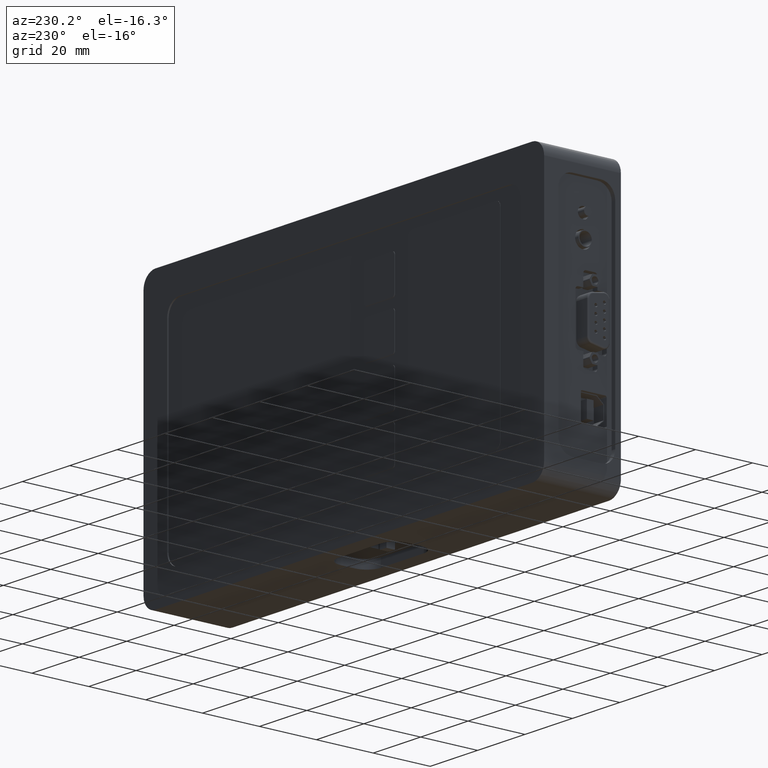
[diagram: clean part render]
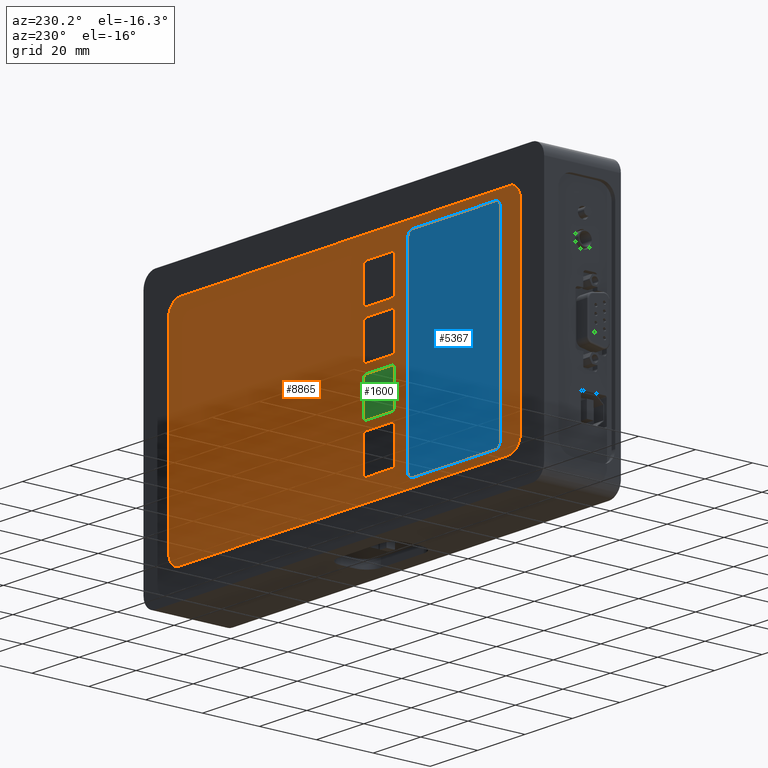
[diagram: same view with three faces highlighted in distinct colors, each labeled with its STEP entity id]
A machine part, auxiliary view with three faces highlighted in distinct colors.
Their STEP definitions:

[orange] entity #8865 — the highlighted planar face has unit normal (0, -1, 0).
#8 = ORIENTED_EDGE ( 'NONE', *, *, #6400, .F. ) ;
#10 = EDGE_CURVE ( 'NONE', #2562, #3944, #6419, .T. ) ;
#46 = ORIENTED_EDGE ( 'NONE', *, *, #5410, .T. ) ;
#71 = VERTEX_POINT ( 'NONE', #2460 ) ;
#102 = ORIENTED_EDGE ( 'NONE', *, *, #9037, .T. ) ;
#126 = CARTESIAN_POINT ( 'NONE',  ( -63.50000000000000000, 26.50000000000000000, -35.00000000000000000 ) ) ;
#148 = VERTEX_POINT ( 'NONE', #4067 ) ;
#183 = DIRECTION ( 'NONE',  ( 0.7071067811865467956, 0.000000000000000000, 0.7071067811865484609 ) ) ;
#194 = DIRECTION ( 'NONE',  ( 0.7071067811865481278, 0.000000000000000000, -0.7071067811865469066 ) ) ;
#208 = CIRCLE ( 'NONE', #785, 5.000000000000001776 ) ;
#210 = DIRECTION ( 'NONE',  ( 0.000000000000000000, 1.000000000000000000, 0.000000000000000000 ) ) ;
#257 = DIRECTION ( 'NONE',  ( -0.7071067811865457964, 0.000000000000000000, 0.7071067811865492381 ) ) ;
#259 = DIRECTION ( 'NONE',  ( 0.000000000000000000, -1.000000000000000000, 0.000000000000000000 ) ) ;
#293 = DIRECTION ( 'NONE',  ( 0.000000000000000000, 1.000000000000000000, 0.000000000000000000 ) ) ;
#294 = CARTESIAN_POINT ( 'NONE',  ( -8.292893218813452094, 26.50000000000000000, 14.20710678118654791 ) ) ;
#308 = DIRECTION ( 'NONE',  ( 0.7071067811865467956, 0.000000000000000000, 0.7071067811865484609 ) ) ;
#314 = CARTESIAN_POINT ( 'NONE',  ( -65.50000000000000000, 26.50000000000000000, -16.50000000000000000 ) ) ;
#352 = DIRECTION ( 'NONE',  ( 0.7071067811865467956, 0.000000000000000000, -0.7071067811865484609 ) ) ;
#362 = AXIS2_PLACEMENT_3D ( 'NONE', #5521, #5656, #6252 ) ;
#388 = DIRECTION ( 'NONE',  ( 0.000000000000000000, -1.000000000000000000, 0.000000000000000000 ) ) ;
#397 = EDGE_CURVE ( 'NONE', #2123, #8497, #7918, .T. ) ;
#405 = ORIENTED_EDGE ( 'NONE', *, *, #3450, .F. ) ;
#417 = DIRECTION ( 'NONE',  ( 0.7071067811865481278, 0.000000000000000000, -0.7071067811865469066 ) ) ;
#426 = ORIENTED_EDGE ( 'NONE', *, *, #1044, .F. ) ;
#434 = EDGE_CURVE ( 'NONE', #1462, #7111, #6729, .T. ) ;
#463 = VERTEX_POINT ( 'NONE', #4046 ) ;
#509 = EDGE_CURVE ( 'NONE', #7726, #2894, #5176, .T. ) ;
#513 = DIRECTION ( 'NONE',  ( 0.000000000000000000, 0.000000000000000000, -1.000000000000000000 ) ) ;
#518 = VECTOR ( 'NONE', #6594, 1000.000000000000000 ) ;
#549 = EDGE_CURVE ( 'NONE', #2016, #2232, #5908, .T. ) ;
#565 = CARTESIAN_POINT ( 'NONE',  ( -73.03553390591824268, 26.50000000000000000, 36.53553390594733941 ) ) ;
#576 = DIRECTION ( 'NONE',  ( 0.000000000000000000, 1.000000000000000000, 0.000000000000000000 ) ) ;
#579 = VERTEX_POINT ( 'NONE', #1513 ) ;
#651 = AXIS2_PLACEMENT_3D ( 'NONE', #2684, #1445, #7076 ) ;
#712 = EDGE_CURVE ( 'NONE', #5114, #1595, #8089, .T. ) ;
#724 = DIRECTION ( 'NONE',  ( 0.7071067811865467956, 0.000000000000000000, 0.7071067811865484609 ) ) ;
#745 = CARTESIAN_POINT ( 'NONE',  ( -69.49999999998550493, 26.50000000000000000, -33.00000000001460165 ) ) ;
#753 = ORIENTED_EDGE ( 'NONE', *, *, #1889, .F. ) ;
#763 = EDGE_CURVE ( 'NONE', #8847, #2029, #2377, .T. ) ;
#772 = CIRCLE ( 'NONE', #4575, 0.9999999999999992228 ) ;
#773 = ORIENTED_EDGE ( 'NONE', *, *, #712, .F. ) ;
#780 = VERTEX_POINT ( 'NONE', #3162 ) ;
#785 = AXIS2_PLACEMENT_3D ( 'NONE', #3248, #8179, #4710 ) ;
#791 = CARTESIAN_POINT ( 'NONE',  ( -1.776356839400250149E-14, 26.50000000000000000, 4.440892098500630106E-15 ) ) ;
#799 = ORIENTED_EDGE ( 'NONE', *, *, #6483, .F. ) ;
#808 = EDGE_LOOP ( 'NONE', ( #2116, #46, #6548, #8250, #2695, #3067, #815, #6992, #5482, #2631, #3370, #4395 ) ) ;
#815 = ORIENTED_EDGE ( 'NONE', *, *, #509, .T. ) ;
#834 = AXIS2_PLACEMENT_3D ( 'NONE', #7449, #2648, #2567 ) ;
#863 = CARTESIAN_POINT ( 'NONE',  ( -20.70710678118654613, 26.50000000000000000, -1.792893218813450540 ) ) ;
#864 = LINE ( 'NONE', #7095, #6732 ) ;
#925 = DIRECTION ( 'NONE',  ( 0.000000000000000000, -1.000000000000000000, 0.000000000000000000 ) ) ;
#981 = AXIS2_PLACEMENT_3D ( 'NONE', #8577, #6396, #257 ) ;
#992 = DIRECTION ( 'NONE',  ( 1.000000000000000000, 0.000000000000000000, -2.537652627714639929E-16 ) ) ;
#1004 = DIRECTION ( 'NONE',  ( 0.000000000000000000, 1.000000000000000000, 0.000000000000000000 ) ) ;
#1009 = CARTESIAN_POINT ( 'NONE',  ( -8.000000000000000000, 26.50000000000000000, -0.7500000000000000000 ) ) ;
#1018 = DIRECTION ( 'NONE',  ( 4.270088556250600220E-16, 0.000000000000000000, 1.000000000000000000 ) ) ;
#1044 = EDGE_CURVE ( 'NONE', #1462, #5114, #8527, .T. ) ;
#1074 = VECTOR ( 'NONE', #1695, 1000.000000000000000 ) ;
#1095 = ORIENTED_EDGE ( 'NONE', *, *, #6778, .F. ) ;
#1099 = CARTESIAN_POINT ( 'NONE',  ( -74.49999999998550493, 26.50000000000000000, 33.00000000001460165 ) ) ;
#1102 = CIRCLE ( 'NONE', #8551, 1.000000000000000000 ) ;
#1127 = CARTESIAN_POINT ( 'NONE',  ( -8.000000000000000000, 26.50000000000000000, 29.50000000000000000 ) ) ;
#1135 = DIRECTION ( 'NONE',  ( 0.000000000000000000, 1.000000000000000000, 0.000000000000000000 ) ) ;
#1139 = ORIENTED_EDGE ( 'NONE', *, *, #3038, .T. ) ;
#1155 = VECTOR ( 'NONE', #8700, 1000.000000000000000 ) ;
#1179 = AXIS2_PLACEMENT_3D ( 'NONE', #5858, #1004, #308 ) ;
#1186 = CIRCLE ( 'NONE', #6310, 2.000000000000001776 ) ;
#1246 = CARTESIAN_POINT ( 'NONE',  ( -9.000000000000000000, 26.50000000000000000, -30.50000000000000000 ) ) ;
#1258 = CARTESIAN_POINT ( 'NONE',  ( -8.000000000000000000, 26.50000000000000000, 2.500000000000000000 ) ) ;
#1260 = EDGE_CURVE ( 'NONE', #1390, #3538, #6790, .T. ) ;
#1305 = LINE ( 'NONE', #3555, #5779 ) ;
#1309 = CARTESIAN_POINT ( 'NONE',  ( -20.00000000000000000, 26.50000000000000000, -2.500000000000000000 ) ) ;
#1325 = CARTESIAN_POINT ( 'NONE',  ( -69.49999999998550493, 26.50000000000000000, 33.00000000001460165 ) ) ;
#1346 = CIRCLE ( 'NONE', #3109, 0.9999999999999997780 ) ;
#1390 = VERTEX_POINT ( 'NONE', #3369 ) ;
#1399 = CIRCLE ( 'NONE', #8831, 1.000000000000001332 ) ;
#1435 = CARTESIAN_POINT ( 'NONE',  ( -20.00000000000000000, 26.50000000000000000, -29.50000000000000000 ) ) ;
#1445 = DIRECTION ( 'NONE',  ( 0.000000000000000000, 1.000000000000000000, 0.000000000000000000 ) ) ;
#1452 = ORIENTED_EDGE ( 'NONE', *, *, #3177, .F. ) ;
#1462 = VERTEX_POINT ( 'NONE', #2819 ) ;
#1481 = VECTOR ( 'NONE', #992, 1000.000000000000000 ) ;
#1483 = EDGE_CURVE ( 'NONE', #8153, #5662, #4462, .T. ) ;
#1498 = EDGE_CURVE ( 'NONE', #6683, #5124, #3472, .T. ) ;
#1507 = CIRCLE ( 'NONE', #8218, 1.000000000000000000 ) ;
#1511 = EDGE_CURVE ( 'NONE', #1390, #1595, #1305, .T. ) ;
#1512 = AXIS2_PLACEMENT_3D ( 'NONE', #4740, #5566, #7705 ) ;
#1513 = CARTESIAN_POINT ( 'NONE',  ( -20.00000000000000000, 26.50000000000000000, -14.50000000000000000 ) ) ;
#1537 = CIRCLE ( 'NONE', #8086, 1.000000000000001332 ) ;
#1539 = CARTESIAN_POINT ( 'NONE',  ( -69.49999999998550493, 26.50000000000000000, 33.00000000001460165 ) ) ;
#1540 = CARTESIAN_POINT ( 'NONE',  ( -8.000000000000000000, 26.50000000000000000, -18.50000000000000000 ) ) ;
#1556 = CARTESIAN_POINT ( 'NONE',  ( -8.000000000000000000, 26.50000000000000000, 7.250000000000000000 ) ) ;
#1571 = FACE_OUTER_BOUND ( 'NONE', #808, .T. ) ;
#1580 = DIRECTION ( 'NONE',  ( 0.000000000000000000, 1.000000000000000000, 0.000000000000000000 ) ) ;
#1595 = VERTEX_POINT ( 'NONE', #1540 ) ;
#1614 = DIRECTION ( 'NONE',  ( 0.000000000000000000, 1.000000000000000000, 0.000000000000000000 ) ) ;
#1629 = VERTEX_POINT ( 'NONE', #7257 ) ;
#1632 = CARTESIAN_POINT ( 'NONE',  ( -9.000000000000000000, 26.50000000000000000, -29.50000000000000000 ) ) ;
#1638 = VERTEX_POINT ( 'NONE', #294 ) ;
#1675 = VECTOR ( 'NONE', #7658, 1000.000000000000000 ) ;
#1695 = DIRECTION ( 'NONE',  ( 4.270088556250600220E-16, 0.000000000000000000, 1.000000000000000000 ) ) ;
#1728 = EDGE_CURVE ( 'NONE', #6810, #1629, #4553, .T. ) ;
#1748 = DIRECTION ( 'NONE',  ( -1.000000000000000000, 0.000000000000000000, 0.000000000000000000 ) ) ;
#1758 = CARTESIAN_POINT ( 'NONE',  ( -20.00000000000000000, 26.50000000000000000, -17.50000000000000000 ) ) ;
#1776 = EDGE_CURVE ( 'NONE', #8847, #8153, #8518, .T. ) ;
#1777 = CARTESIAN_POINT ( 'NONE',  ( -9.000000000000000000, 26.50000000000000000, -18.50000000000000000 ) ) ;
#1806 = CARTESIAN_POINT ( 'NONE',  ( -21.00000000000000000, 26.50000000000000000, -29.50000000000000000 ) ) ;
#1810 = ORIENTED_EDGE ( 'NONE', *, *, #8659, .F. ) ;
#1846 = CIRCLE ( 'NONE', #5508, 1.000000000000000000 ) ;
#1850 = CIRCLE ( 'NONE', #981, 0.9999999999999988898 ) ;
#1871 = DIRECTION ( 'NONE',  ( -1.345724878333519912E-16, 0.000000000000000000, -1.000000000000000000 ) ) ;
#1889 = EDGE_CURVE ( 'NONE', #5731, #2665, #1537, .T. ) ;
#1890 = EDGE_CURVE ( 'NONE', #4795, #6681, #5929, .T. ) ;
#1905 = DIRECTION ( 'NONE',  ( 0.7071067811865475727, 0.000000000000000000, -0.7071067811865475727 ) ) ;
#1949 = DIRECTION ( 'NONE',  ( -0.7071067811865484609, 0.000000000000000000, -0.7071067811865467956 ) ) ;
#1965 = CARTESIAN_POINT ( 'NONE',  ( -8.292893218813452094, 26.50000000000000000, -17.79289321881345032 ) ) ;
#1967 = ORIENTED_EDGE ( 'NONE', *, *, #5843, .T. ) ;
#2004 = CARTESIAN_POINT ( 'NONE',  ( -69.49999999998550493, 26.50000000000000000, -38.00000000001460165 ) ) ;
#2016 = VERTEX_POINT ( 'NONE', #4331 ) ;
#2028 = CARTESIAN_POINT ( 'NONE',  ( -8.000000000000000000, 26.50000000000000000, -13.50000000000000000 ) ) ;
#2029 = VERTEX_POINT ( 'NONE', #3737 ) ;
#2036 = CARTESIAN_POINT ( 'NONE',  ( -20.00000000000000000, 26.50000000000000000, 29.50000000000000000 ) ) ;
#2048 = CARTESIAN_POINT ( 'NONE',  ( -20.00000000000000000, 26.50000000000000000, 29.50000000000000000 ) ) ;
#2088 = AXIS2_PLACEMENT_3D ( 'NONE', #2048, #7717, #6895 ) ;
#2093 = DIRECTION ( 'NONE',  ( 0.000000000000000000, 1.000000000000000000, 0.000000000000000000 ) ) ;
#2098 = AXIS2_PLACEMENT_3D ( 'NONE', #5844, #293, #6476 ) ;
#2113 = EDGE_CURVE ( 'NONE', #2562, #7183, #208, .T. ) ;
#2116 = ORIENTED_EDGE ( 'NONE', *, *, #2113, .T. ) ;
#2119 = VECTOR ( 'NONE', #7616, 1000.000000000000000 ) ;
#2120 = DIRECTION ( 'NONE',  ( 0.000000000000000000, -1.000000000000000000, 0.000000000000000000 ) ) ;
#2123 = VERTEX_POINT ( 'NONE', #3341 ) ;
#2143 = LINE ( 'NONE', #6480, #5078 ) ;
#2164 = VECTOR ( 'NONE', #5412, 1000.000000000000000 ) ;
#2175 = CARTESIAN_POINT ( 'NONE',  ( -28.50000000000000000, 26.50000000000000000, -35.00000000000000000 ) ) ;
#2178 = EDGE_CURVE ( 'NONE', #4431, #4560, #6175, .T. ) ;
#2188 = VERTEX_POINT ( 'NONE', #863 ) ;
#2190 = EDGE_CURVE ( 'NONE', #3443, #6810, #5912, .T. ) ;
#2232 = VERTEX_POINT ( 'NONE', #6957 ) ;
#2245 = CIRCLE ( 'NONE', #2975, 1.000000000000000444 ) ;
#2246 = CIRCLE ( 'NONE', #7065, 1.000000000000001332 ) ;
#2296 = VECTOR ( 'NONE', #7848, 1000.000000000000000 ) ;
#2301 = CARTESIAN_POINT ( 'NONE',  ( -9.000000000000000000, 26.50000000000000000, -2.500000000000000000 ) ) ;
#2327 = DIRECTION ( 'NONE',  ( 1.000000000000000000, 0.000000000000000000, -3.416070845000479880E-16 ) ) ;
#2348 = EDGE_CURVE ( 'NONE', #6983, #7862, #8536, .T. ) ;
#2377 = LINE ( 'NONE', #1009, #1074 ) ;
#2403 = EDGE_CURVE ( 'NONE', #7014, #2918, #8963, .T. ) ;
#2406 = CARTESIAN_POINT ( 'NONE',  ( -9.000000000000000000, 26.50000000000000000, 18.50000000000000000 ) ) ;
#2416 = ORIENTED_EDGE ( 'NONE', *, *, #3155, .F. ) ;
#2430 = AXIS2_PLACEMENT_3D ( 'NONE', #6956, #2747, #7723 ) ;
#2460 = CARTESIAN_POINT ( 'NONE',  ( -21.00000000000000000, 26.50000000000000000, 2.500000000000000000 ) ) ;
#2487 = DIRECTION ( 'NONE',  ( 0.7071067811865469066, 0.000000000000000000, 0.7071067811865481278 ) ) ;
#2502 = DIRECTION ( 'NONE',  ( 0.7071067811865467956, 0.000000000000000000, -0.7071067811865484609 ) ) ;
#2517 = AXIS2_PLACEMENT_3D ( 'NONE', #8150, #3451, #4189 ) ;
#2527 = CIRCLE ( 'NONE', #6181, 1.000000000000001332 ) ;
#2533 = AXIS2_PLACEMENT_3D ( 'NONE', #791, #925, #8565 ) ;
#2554 = AXIS2_PLACEMENT_3D ( 'NONE', #6628, #8627, #4528 ) ;
#2558 = EDGE_CURVE ( 'NONE', #579, #6653, #5778, .T. ) ;
#2562 = VERTEX_POINT ( 'NONE', #3979 ) ;
#2567 = DIRECTION ( 'NONE',  ( -0.7071067811865457964, 0.000000000000000000, 0.7071067811865492381 ) ) ;
#2580 = CIRCLE ( 'NONE', #2430, 0.9999999999999988898 ) ;
#2615 = ORIENTED_EDGE ( 'NONE', *, *, #4476, .T. ) ;
#2631 = ORIENTED_EDGE ( 'NONE', *, *, #2348, .T. ) ;
#2641 = AXIS2_PLACEMENT_3D ( 'NONE', #6629, #7354, #1905 ) ;
#2648 = DIRECTION ( 'NONE',  ( 0.000000000000000000, 1.000000000000000000, 0.000000000000000000 ) ) ;
#2660 = EDGE_CURVE ( 'NONE', #7966, #2864, #8987, .T. ) ;
#2665 = VERTEX_POINT ( 'NONE', #7801 ) ;
#2670 = CARTESIAN_POINT ( 'NONE',  ( -20.00000000000000000, 26.50000000000000000, -29.50000000000000000 ) ) ;
#2669 = CIRCLE ( 'NONE', #2098, 5.000000000000001776 ) ;
#2684 = CARTESIAN_POINT ( 'NONE',  ( -9.000000000000000000, 26.50000000000000000, -13.50000000000000000 ) ) ;
#2695 = ORIENTED_EDGE ( 'NONE', *, *, #3859, .T. ) ;
#2700 = CARTESIAN_POINT ( 'NONE',  ( -10.50000000000000000, 26.50000000000000000, -1.500000000000000000 ) ) ;
#2714 = CARTESIAN_POINT ( 'NONE',  ( -20.00000000000000000, 26.50000000000000000, 2.500000000000000000 ) ) ;
#2747 = DIRECTION ( 'NONE',  ( 0.000000000000000000, 1.000000000000000000, 0.000000000000000000 ) ) ;
#2789 = CARTESIAN_POINT ( 'NONE',  ( -21.00000000000000000, 26.50000000000000000, 18.50000000000000000 ) ) ;
#2813 = DIRECTION ( 'NONE',  ( 0.000000000000000000, 1.000000000000000000, 0.000000000000000000 ) ) ;
#2819 = CARTESIAN_POINT ( 'NONE',  ( -9.000000000000000000, 26.50000000000000000, -17.50000000000000000 ) ) ;
#2848 = DIRECTION ( 'NONE',  ( 0.7071067811865475727, 0.000000000000000000, 0.7071067811865475727 ) ) ;
#2864 = VERTEX_POINT ( 'NONE', #1806 ) ;
#2875 = DIRECTION ( 'NONE',  ( 0.000000000000000000, 1.000000000000000000, 0.000000000000000000 ) ) ;
#2878 = VERTEX_POINT ( 'NONE', #3323 ) ;
#2894 = VERTEX_POINT ( 'NONE', #565 ) ;
#2918 = VERTEX_POINT ( 'NONE', #3931 ) ;
#2939 = CARTESIAN_POINT ( 'NONE',  ( -9.000000000000000000, 26.50000000000000000, 13.50000000000000000 ) ) ;
#2975 = AXIS2_PLACEMENT_3D ( 'NONE', #8649, #6463, #194 ) ;
#2983 = DIRECTION ( 'NONE',  ( 1.000000000000000000, 0.000000000000000000, 3.469446951953617344E-15 ) ) ;
#3005 = VECTOR ( 'NONE', #1748, 1000.000000000000000 ) ;
#3007 = LINE ( 'NONE', #7210, #2296 ) ;
#3010 = ORIENTED_EDGE ( 'NONE', *, *, #2403, .F. ) ;
#3013 = VERTEX_POINT ( 'NONE', #8974 ) ;
#3014 = CIRCLE ( 'NONE', #3302, 5.000000000000001776 ) ;
#3024 = EDGE_LOOP ( 'NONE', ( #4400, #4788, #6722, #5000, #5402, #1967, #8457, #7818 ) ) ;
#3038 = EDGE_CURVE ( 'NONE', #2016, #3715, #7017, .T. ) ;
#3052 = ORIENTED_EDGE ( 'NONE', *, *, #1483, .F. ) ;
#3067 = ORIENTED_EDGE ( 'NONE', *, *, #3278, .F. ) ;
#3093 = ORIENTED_EDGE ( 'NONE', *, *, #397, .T. ) ;
#3109 = AXIS2_PLACEMENT_3D ( 'NONE', #2301, #7106, #6377 ) ;
#3113 = AXIS2_PLACEMENT_3D ( 'NONE', #1539, #1580, #8661 ) ;
#3121 = VECTOR ( 'NONE', #1018, 1000.000000000000000 ) ;
#3150 = ORIENTED_EDGE ( 'NONE', *, *, #3981, .F. ) ;
#3155 = EDGE_CURVE ( 'NONE', #3169, #3432, #6358, .T. ) ;
#3162 = CARTESIAN_POINT ( 'NONE',  ( -9.000000000000000000, 26.50000000000000000, 1.500000000000000000 ) ) ;
#3169 = VERTEX_POINT ( 'NONE', #4463 ) ;
#3177 = EDGE_CURVE ( 'NONE', #2878, #1638, #1102, .T. ) ;
#3248 = CARTESIAN_POINT ( 'NONE',  ( 69.49999999998539124, 26.50000000000000000, -33.00000000001450218 ) ) ;
#3250 = CIRCLE ( 'NONE', #6898, 0.9999999999999995559 ) ;
#3269 = CIRCLE ( 'NONE', #4446, 0.9999999999999997780 ) ;
#3278 = EDGE_CURVE ( 'NONE', #7726, #7884, #6826, .T. ) ;
#3284 = EDGE_CURVE ( 'NONE', #6983, #463, #8874, .T. ) ;
#3302 = AXIS2_PLACEMENT_3D ( 'NONE', #6178, #5451, #8227 ) ;
#3307 = DIRECTION ( 'NONE',  ( 0.000000000000000000, 1.000000000000000000, 0.000000000000000000 ) ) ;
#3320 = DIRECTION ( 'NONE',  ( -0.7071067811865484609, 0.000000000000000000, -0.7071067811865467956 ) ) ;
#3322 = CARTESIAN_POINT ( 'NONE',  ( -26.50000000000000000, 26.50000000000000000, -33.00000000000000000 ) ) ;
#3323 = CARTESIAN_POINT ( 'NONE',  ( -9.000000000000000000, 26.50000000000000000, 14.50000000000000000 ) ) ;
#3341 = CARTESIAN_POINT ( 'NONE',  ( -21.00000000000000000, 26.50000000000000000, -2.500000000000000000 ) ) ;
#3364 = CARTESIAN_POINT ( 'NONE',  ( 73.03553390591812899, 26.50000000000000000, -36.53553390594723993 ) ) ;
#3369 = CARTESIAN_POINT ( 'NONE',  ( -8.000000000000000000, 26.50000000000000000, -29.50000000000000000 ) ) ;
#3370 = ORIENTED_EDGE ( 'NONE', *, *, #8427, .T. ) ;
#3377 = VERTEX_POINT ( 'NONE', #1246 ) ;
#3394 = CARTESIAN_POINT ( 'NONE',  ( -28.50000000000000000, 26.50000000000000000, -33.00000000000000000 ) ) ;
#3395 = ORIENTED_EDGE ( 'NONE', *, *, #5227, .T. ) ;
#3415 = CIRCLE ( 'NONE', #8515, 1.000000000000000444 ) ;
#3430 = ORIENTED_EDGE ( 'NONE', *, *, #549, .F. ) ;
#3432 = VERTEX_POINT ( 'NONE', #4864 ) ;
#3443 = VERTEX_POINT ( 'NONE', #4773 ) ;
#3450 = EDGE_CURVE ( 'NONE', #2232, #7053, #1399, .T. ) ;
#3451 = DIRECTION ( 'NONE',  ( 0.000000000000000000, 1.000000000000000000, 0.000000000000000000 ) ) ;
#3462 = CARTESIAN_POINT ( 'NONE',  ( -20.00000000000000000, 26.50000000000000000, 17.50000000000000000 ) ) ;
#3472 = LINE ( 'NONE', #8984, #6215 ) ;
#3500 = CARTESIAN_POINT ( 'NONE',  ( -8.292893218813452094, 26.50000000000000000, -1.792893218813452094 ) ) ;
#3538 = VERTEX_POINT ( 'NONE', #7104 ) ;
#3546 = DIRECTION ( 'NONE',  ( 0.000000000000000000, 1.000000000000000000, 0.000000000000000000 ) ) ;
#3547 = VECTOR ( 'NONE', #1871, 1000.000000000000000 ) ;
#3555 = CARTESIAN_POINT ( 'NONE',  ( -8.000000000000000000, 26.50000000000000000, -8.750000000000000000 ) ) ;
#3557 = CARTESIAN_POINT ( 'NONE',  ( -9.000000000000000000, 26.50000000000000000, -1.500000000000000000 ) ) ;
#3570 = CARTESIAN_POINT ( 'NONE',  ( -9.000000000000000000, 26.50000000000000000, -18.50000000000000000 ) ) ;
#3610 = DIRECTION ( 'NONE',  ( -1.000000000000000000, 0.000000000000000000, 3.416070845000479880E-16 ) ) ;
#3621 = CIRCLE ( 'NONE', #834, 0.9999999999999988898 ) ;
#3657 = ORIENTED_EDGE ( 'NONE', *, *, #434, .T. ) ;
#3709 = DIRECTION ( 'NONE',  ( 0.000000000000000000, 1.000000000000000000, 0.000000000000000000 ) ) ;
#3715 = VERTEX_POINT ( 'NONE', #5408 ) ;
#3718 = AXIS2_PLACEMENT_3D ( 'NONE', #4010, #388, #5975 ) ;
#3726 = LINE ( 'NONE', #6002, #7478 ) ;
#3734 = PLANE ( 'NONE',  #2533 ) ;
#3737 = CARTESIAN_POINT ( 'NONE',  ( -8.000000000000000000, 26.50000000000000000, -2.500000000000000000 ) ) ;
#3749 = EDGE_CURVE ( 'NONE', #6883, #71, #6644, .T. ) ;
#3750 = VECTOR ( 'NONE', #4853, 1000.000000000000000 ) ;
#3762 = LINE ( 'NONE', #4987, #5364 ) ;
#3776 = DIRECTION ( 'NONE',  ( 1.000000000000000000, 0.000000000000000000, -3.416070845000479880E-16 ) ) ;
#3811 = EDGE_CURVE ( 'NONE', #5731, #3377, #5547, .T. ) ;
#3814 = ORIENTED_EDGE ( 'NONE', *, *, #2178, .T. ) ;
#3829 = ORIENTED_EDGE ( 'NONE', *, *, #9041, .F. ) ;
#3843 = CARTESIAN_POINT ( 'NONE',  ( -21.00000000000000000, 26.50000000000000000, -18.50000000000000000 ) ) ;
#3859 = EDGE_CURVE ( 'NONE', #4976, #7884, #3014, .T. ) ;
#3931 = CARTESIAN_POINT ( 'NONE',  ( -20.70710678118654968, 26.50000000000000000, 1.792893218813453649 ) ) ;
#3944 = VERTEX_POINT ( 'NONE', #8359 ) ;
#3954 = LINE ( 'NONE', #8701, #3121 ) ;
#3974 = ORIENTED_EDGE ( 'NONE', *, *, #2660, .T. ) ;
#3979 = CARTESIAN_POINT ( 'NONE',  ( 74.49999999998539124, 26.50000000000000000, -33.00000000001450218 ) ) ;
#3981 = EDGE_CURVE ( 'NONE', #6681, #5124, #2580, .T. ) ;
#4004 = CIRCLE ( 'NONE', #1512, 0.9999999999999988898 ) ;
#4010 = CARTESIAN_POINT ( 'NONE',  ( -63.50000000000000000, 26.50000000000000000, -33.00000000000000000 ) ) ;
#4023 = EDGE_CURVE ( 'NONE', #579, #5662, #3762, .T. ) ;
#4046 = CARTESIAN_POINT ( 'NONE',  ( -69.49999999998550493, 26.50000000000000000, 38.00000000001460165 ) ) ;
#4067 = CARTESIAN_POINT ( 'NONE',  ( -65.50000000000000000, 26.50000000000000000, -33.00000000000000000 ) ) ;
#4115 = CIRCLE ( 'NONE', #7457, 0.9999999999999992228 ) ;
#4129 = CIRCLE ( 'NONE', #5444, 5.000000000000001776 ) ;
#4138 = CARTESIAN_POINT ( 'NONE',  ( -20.70710678118654613, 26.50000000000000000, 14.20710678118654791 ) ) ;
#4143 = CIRCLE ( 'NONE', #2088, 1.000000000000001332 ) ;
#4165 = CARTESIAN_POINT ( 'NONE',  ( -21.00000000000000000, 26.50000000000000000, -15.25000000000000000 ) ) ;
#4189 = DIRECTION ( 'NONE',  ( -0.7071067811865457964, 0.000000000000000000, 0.7071067811865492381 ) ) ;
#4210 = DIRECTION ( 'NONE',  ( 0.000000000000000000, 0.000000000000000000, -1.000000000000000000 ) ) ;
#4215 = CIRCLE ( 'NONE', #4352, 1.000000000000001332 ) ;
#4218 = EDGE_CURVE ( 'NONE', #3538, #3377, #1846, .T. ) ;
#4226 = ORIENTED_EDGE ( 'NONE', *, *, #4488, .F. ) ;
#4260 = CARTESIAN_POINT ( 'NONE',  ( 73.03553390591812899, 26.50000000000000000, 36.53553390594733941 ) ) ;
#4264 = CARTESIAN_POINT ( 'NONE',  ( -28.50000000000000000, 26.50000000000000000, 33.00000000000000000 ) ) ;
#4274 = VECTOR ( 'NONE', #7080, 1000.000000000000000 ) ;
#4298 = ORIENTED_EDGE ( 'NONE', *, *, #7580, .F. ) ;
#4331 = CARTESIAN_POINT ( 'NONE',  ( -9.000000000000000000, 26.50000000000000000, 30.50000000000000000 ) ) ;
#4333 = DIRECTION ( 'NONE',  ( -0.7071067811865475727, 0.000000000000000000, -0.7071067811865475727 ) ) ;
#4344 = CARTESIAN_POINT ( 'NONE',  ( -4.000000000000000000, 26.50000000000000000, 17.50000000000000000 ) ) ;
#4352 = AXIS2_PLACEMENT_3D ( 'NONE', #2670, #5475, #8254 ) ;
#4366 = ORIENTED_EDGE ( 'NONE', *, *, #1776, .F. ) ;
#4367 = ORIENTED_EDGE ( 'NONE', *, *, #6661, .T. ) ;
#4383 = CARTESIAN_POINT ( 'NONE',  ( -20.00000000000000000, 26.50000000000000000, -30.50000000000000000 ) ) ;
#4395 = ORIENTED_EDGE ( 'NONE', *, *, #10, .F. ) ;
#4400 = ORIENTED_EDGE ( 'NONE', *, *, #2190, .T. ) ;
#4431 = VERTEX_POINT ( 'NONE', #3557 ) ;
#4446 = AXIS2_PLACEMENT_3D ( 'NONE', #6791, #8748, #2487 ) ;
#4449 = AXIS2_PLACEMENT_3D ( 'NONE', #5456, #3307, #8233 ) ;
#4457 = CARTESIAN_POINT ( 'NONE',  ( -21.00000000000000000, 26.50000000000000000, -7.250000000000000000 ) ) ;
#4462 = CIRCLE ( 'NONE', #651, 1.000000000000001332 ) ;
#4463 = CARTESIAN_POINT ( 'NONE',  ( -8.292893218813452094, 26.50000000000000000, 17.79289321881345032 ) ) ;
#4476 = EDGE_CURVE ( 'NONE', #2878, #5371, #2143, .T. ) ;
#4481 = EDGE_CURVE ( 'NONE', #4730, #3443, #3007, .T. ) ;
#4488 = EDGE_CURVE ( 'NONE', #6341, #5371, #1850, .T. ) ;
#4496 = DIRECTION ( 'NONE',  ( 0.000000000000000000, 1.000000000000000000, 0.000000000000000000 ) ) ;
#4528 = DIRECTION ( 'NONE',  ( -0.7071067811865487940, 0.000000000000000000, -0.7071067811865462405 ) ) ;
#4530 = ORIENTED_EDGE ( 'NONE', *, *, #5528, .F. ) ;
#4548 = ORIENTED_EDGE ( 'NONE', *, *, #8449, .F. ) ;
#4553 = LINE ( 'NONE', #5344, #7358 ) ;
#4560 = VERTEX_POINT ( 'NONE', #5345 ) ;
#4575 = AXIS2_PLACEMENT_3D ( 'NONE', #5537, #2875, #8352 ) ;
#4684 = ORIENTED_EDGE ( 'NONE', *, *, #3749, .T. ) ;
#4705 = ORIENTED_EDGE ( 'NONE', *, *, #5678, .T. ) ;
#4710 = DIRECTION ( 'NONE',  ( 0.7071067811865475727, 0.000000000000000000, -0.7071067811865475727 ) ) ;
#4730 = VERTEX_POINT ( 'NONE', #3322 ) ;
#4740 = CARTESIAN_POINT ( 'NONE',  ( -20.00000000000000000, 26.50000000000000000, -18.50000000000000000 ) ) ;
#4756 = AXIS2_PLACEMENT_3D ( 'NONE', #8750, #7465, #6792 ) ;
#4771 = EDGE_LOOP ( 'NONE', ( #5710, #3052, #4366, #5526, #1810, #799, #3814, #4530, #7474, #3093, #8789, #7806 ) ) ;
#4773 = CARTESIAN_POINT ( 'NONE',  ( -26.50000000000000000, 26.50000000000000000, 33.00000000000000000 ) ) ;
#4788 = ORIENTED_EDGE ( 'NONE', *, *, #1728, .T. ) ;
#4795 = VERTEX_POINT ( 'NONE', #3462 ) ;
#4812 = EDGE_CURVE ( 'NONE', #2665, #2864, #4215, .T. ) ;
#4813 = DIRECTION ( 'NONE',  ( 0.000000000000000000, 1.000000000000000000, 0.000000000000000000 ) ) ;
#4816 = DIRECTION ( 'NONE',  ( 0.000000000000000000, 1.000000000000000000, 0.000000000000000000 ) ) ;
#4827 = DIRECTION ( 'NONE',  ( -0.7071067811865510144, 0.000000000000000000, -0.7071067811865441310 ) ) ;
#4853 = DIRECTION ( 'NONE',  ( 1.000000000000000000, 0.000000000000000000, -3.416070845000479880E-16 ) ) ;
#4864 = CARTESIAN_POINT ( 'NONE',  ( -9.000000000000000000, 26.50000000000000000, 17.50000000000000000 ) ) ;
#4972 = EDGE_LOOP ( 'NONE', ( #4367, #3829, #5050, #3395, #7914, #1452, #2615, #4226, #8757, #4684, #4298, #3010 ) ) ;
#4976 = VERTEX_POINT ( 'NONE', #8180 ) ;
#4980 = CARTESIAN_POINT ( 'NONE',  ( -63.50000000000000000, 26.50000000000000000, 33.00000000000000000 ) ) ;
#4987 = CARTESIAN_POINT ( 'NONE',  ( -4.000000000000000000, 26.50000000000000000, -14.50000000000000000 ) ) ;
#4999 = CARTESIAN_POINT ( 'NONE',  ( -65.50000000000000000, 26.50000000000000000, 33.00000000000000000 ) ) ;
#5000 = ORIENTED_EDGE ( 'NONE', *, *, #7771, .T. ) ;
#5007 = DIRECTION ( 'NONE',  ( 0.000000000000000000, 1.000000000000000000, 0.000000000000000000 ) ) ;
#5024 = VERTEX_POINT ( 'NONE', #8822 ) ;
#5032 = EDGE_CURVE ( 'NONE', #6883, #6341, #3621, .T. ) ;
#5050 = ORIENTED_EDGE ( 'NONE', *, *, #8976, .F. ) ;
#5078 = VECTOR ( 'NONE', #3610, 1000.000000000000000 ) ;
#5100 = FACE_BOUND ( 'NONE', #8331, .T. ) ;
#5114 = VERTEX_POINT ( 'NONE', #1965 ) ;
#5124 = VERTEX_POINT ( 'NONE', #2789 ) ;
#5165 = DIRECTION ( 'NONE',  ( 0.000000000000000000, 1.000000000000000000, 0.000000000000000000 ) ) ;
#5176 = CIRCLE ( 'NONE', #8665, 5.000000000000001776 ) ;
#5227 = EDGE_CURVE ( 'NONE', #7253, #7264, #8629, .T. ) ;
#5248 = DIRECTION ( 'NONE',  ( 0.000000000000000000, 1.000000000000000000, 0.000000000000000000 ) ) ;
#5263 = EDGE_CURVE ( 'NONE', #6852, #5024, #864, .T. ) ;
#5312 = EDGE_CURVE ( 'NONE', #1638, #7264, #8769, .T. ) ;
#5326 = AXIS2_PLACEMENT_3D ( 'NONE', #1777, #4496, #183 ) ;
#5344 = CARTESIAN_POINT ( 'NONE',  ( -31.75000000000000000, 26.50000000000000000, 35.00000000000000000 ) ) ;
#5345 = CARTESIAN_POINT ( 'NONE',  ( -20.00000000000000000, 26.50000000000000000, -1.500000000000000000 ) ) ;
#5364 = VECTOR ( 'NONE', #2327, 1000.000000000000000 ) ;
#5371 = VERTEX_POINT ( 'NONE', #5953 ) ;
#5402 = ORIENTED_EDGE ( 'NONE', *, *, #8652, .T. ) ;
#5408 = CARTESIAN_POINT ( 'NONE',  ( -20.00000000000000000, 26.50000000000000000, 30.50000000000000000 ) ) ;
#5410 = EDGE_CURVE ( 'NONE', #7183, #5024, #7601, .T. ) ;
#5412 = DIRECTION ( 'NONE',  ( -1.000000000000000000, 0.000000000000000000, 3.416070845000479880E-16 ) ) ;
#5444 = AXIS2_PLACEMENT_3D ( 'NONE', #745, #3546, #4333 ) ;
#5451 = DIRECTION ( 'NONE',  ( 0.000000000000000000, 1.000000000000000000, 0.000000000000000000 ) ) ;
#5456 = CARTESIAN_POINT ( 'NONE',  ( -9.000000000000000000, 26.50000000000000000, 29.50000000000000000 ) ) ;
#5475 = DIRECTION ( 'NONE',  ( 0.000000000000000000, 1.000000000000000000, 0.000000000000000000 ) ) ;
#5482 = ORIENTED_EDGE ( 'NONE', *, *, #3284, .F. ) ;
#5508 = AXIS2_PLACEMENT_3D ( 'NONE', #8680, #1135, #2502 ) ;
#5521 = CARTESIAN_POINT ( 'NONE',  ( -20.00000000000000000, 26.50000000000000000, 18.50000000000000000 ) ) ;
#5526 = ORIENTED_EDGE ( 'NONE', *, *, #763, .T. ) ;
#5528 = EDGE_CURVE ( 'NONE', #2188, #4560, #4115, .T. ) ;
#5537 = CARTESIAN_POINT ( 'NONE',  ( -20.00000000000000000, 26.50000000000000000, -2.500000000000000000 ) ) ;
#5547 = LINE ( 'NONE', #8281, #3750 ) ;
#5566 = DIRECTION ( 'NONE',  ( 0.000000000000000000, 1.000000000000000000, 0.000000000000000000 ) ) ;
#5580 = CARTESIAN_POINT ( 'NONE',  ( -74.49999999998550493, 26.50000000000000000, -33.00000000001460165 ) ) ;
#5612 = DIRECTION ( 'NONE',  ( -0.7071067811865475727, 0.000000000000000000, 0.7071067811865475727 ) ) ;
#5656 = DIRECTION ( 'NONE',  ( 0.000000000000000000, 1.000000000000000000, 0.000000000000000000 ) ) ;
#5662 = VERTEX_POINT ( 'NONE', #5670 ) ;
#5666 = DIRECTION ( 'NONE',  ( 4.270088556250600220E-16, 0.000000000000000000, 1.000000000000000000 ) ) ;
#5670 = CARTESIAN_POINT ( 'NONE',  ( -9.000000000000000000, 26.50000000000000000, -14.50000000000000000 ) ) ;
#5678 = EDGE_CURVE ( 'NONE', #4795, #3432, #7802, .T. ) ;
#5688 = ORIENTED_EDGE ( 'NONE', *, *, #4218, .F. ) ;
#5690 = EDGE_CURVE ( 'NONE', #1629, #6550, #1186, .T. ) ;
#5710 = ORIENTED_EDGE ( 'NONE', *, *, #4023, .T. ) ;
#5731 = VERTEX_POINT ( 'NONE', #4383 ) ;
#5733 = CIRCLE ( 'NONE', #2517, 0.9999999999999988898 ) ;
#5778 = CIRCLE ( 'NONE', #6067, 1.000000000000000000 ) ;
#5779 = VECTOR ( 'NONE', #5666, 1000.000000000000000 ) ;
#5843 = EDGE_CURVE ( 'NONE', #6962, #6035, #6668, .T. ) ;
#5844 = CARTESIAN_POINT ( 'NONE',  ( 69.49999999998539124, 26.50000000000000000, 33.00000000001460165 ) ) ;
#5858 = CARTESIAN_POINT ( 'NONE',  ( -9.000000000000000000, 26.50000000000000000, 13.50000000000000000 ) ) ;
#5908 = CIRCLE ( 'NONE', #4449, 1.000000000000001332 ) ;
#5912 = CIRCLE ( 'NONE', #7073, 2.000000000000001776 ) ;
#5929 = CIRCLE ( 'NONE', #362, 0.9999999999999988898 ) ;
#5953 = CARTESIAN_POINT ( 'NONE',  ( -20.00000000000000000, 26.50000000000000000, 14.50000000000000000 ) ) ;
#5975 = DIRECTION ( 'NONE',  ( -1.387778780781444413E-14, 0.000000000000000000, -1.000000000000000000 ) ) ;
#5981 = CARTESIAN_POINT ( 'NONE',  ( -14.25000000000000000, 26.50000000000000000, -35.00000000000000000 ) ) ;
#6002 = CARTESIAN_POINT ( 'NONE',  ( -4.000000000000000000, 26.50000000000000000, 1.500000000000000000 ) ) ;
#6008 = CARTESIAN_POINT ( 'NONE',  ( -74.49999999998550493, 26.50000000000000000, -38.00000000001460165 ) ) ;
#6035 = VERTEX_POINT ( 'NONE', #2175 ) ;
#6067 = AXIS2_PLACEMENT_3D ( 'NONE', #8213, #576, #1949 ) ;
#6076 = ORIENTED_EDGE ( 'NONE', *, *, #7215, .F. ) ;
#6092 = LINE ( 'NONE', #314, #3547 ) ;
#6138 = CARTESIAN_POINT ( 'NONE',  ( -10.50000000000000000, 26.50000000000000000, -17.50000000000000000 ) ) ;
#6159 = EDGE_CURVE ( 'NONE', #6852, #4976, #4129, .T. ) ;
#6175 = LINE ( 'NONE', #2700, #8094 ) ;
#6178 = CARTESIAN_POINT ( 'NONE',  ( -69.49999999998550493, 26.50000000000000000, -33.00000000001460165 ) ) ;
#6181 = AXIS2_PLACEMENT_3D ( 'NONE', #2406, #210, #7121 ) ;
#6186 = VERTEX_POINT ( 'NONE', #7116 ) ;
#6202 = ORIENTED_EDGE ( 'NONE', *, *, #1260, .F. ) ;
#6215 = VECTOR ( 'NONE', #4210, 1000.000000000000000 ) ;
#6252 = DIRECTION ( 'NONE',  ( -0.7071067811865492381, 0.000000000000000000, -0.7071067811865457964 ) ) ;
#6293 = CARTESIAN_POINT ( 'NONE',  ( -8.000000000000000000, 26.50000000000000000, 13.50000000000000000 ) ) ;
#6310 = AXIS2_PLACEMENT_3D ( 'NONE', #4980, #259, #6484 ) ;
#6341 = VERTEX_POINT ( 'NONE', #4138 ) ;
#6358 = CIRCLE ( 'NONE', #8257, 1.000000000000001332 ) ;
#6377 = DIRECTION ( 'NONE',  ( 0.7071067811865469066, 0.000000000000000000, 0.7071067811865481278 ) ) ;
#6396 = DIRECTION ( 'NONE',  ( 0.000000000000000000, 1.000000000000000000, 0.000000000000000000 ) ) ;
#6400 = EDGE_CURVE ( 'NONE', #6186, #7111, #5733, .T. ) ;
#6419 = LINE ( 'NONE', #7108, #7582 ) ;
#6443 = EDGE_CURVE ( 'NONE', #6035, #4730, #7050, .T. ) ;
#6459 = ORIENTED_EDGE ( 'NONE', *, *, #3811, .T. ) ;
#6463 = DIRECTION ( 'NONE',  ( 0.000000000000000000, 1.000000000000000000, 0.000000000000000000 ) ) ;
#6475 = CIRCLE ( 'NONE', #3113, 5.000000000000001776 ) ;
#6476 = DIRECTION ( 'NONE',  ( 0.7071067811865475727, 0.000000000000000000, 0.7071067811865475727 ) ) ;
#6480 = CARTESIAN_POINT ( 'NONE',  ( -10.50000000000000000, 26.50000000000000000, 14.50000000000000000 ) ) ;
#6483 = EDGE_CURVE ( 'NONE', #4431, #8746, #1346, .T. ) ;
#6484 = DIRECTION ( 'NONE',  ( -1.000000000000000000, 0.000000000000000000, 0.000000000000000000 ) ) ;
#6487 = CARTESIAN_POINT ( 'NONE',  ( -21.00000000000000000, 26.50000000000000000, 13.50000000000000000 ) ) ;
#6489 = CIRCLE ( 'NONE', #3718, 2.000000000000001776 ) ;
#6490 = ORIENTED_EDGE ( 'NONE', *, *, #1890, .F. ) ;
#6548 = ORIENTED_EDGE ( 'NONE', *, *, #5263, .F. ) ;
#6550 = VERTEX_POINT ( 'NONE', #4999 ) ;
#6584 = DIRECTION ( 'NONE',  ( 1.000000000000000000, 0.000000000000000000, 1.192185798255429936E-16 ) ) ;
#6594 = DIRECTION ( 'NONE',  ( 0.000000000000000000, 0.000000000000000000, -1.000000000000000000 ) ) ;
#6603 = DIRECTION ( 'NONE',  ( -1.000000000000000000, 0.000000000000000000, 3.416070845000479880E-16 ) ) ;
#6628 = CARTESIAN_POINT ( 'NONE',  ( -20.00000000000000000, 26.50000000000000000, 2.500000000000000000 ) ) ;
#6629 = CARTESIAN_POINT ( 'NONE',  ( 69.49999999998539124, 26.50000000000000000, -33.00000000001450218 ) ) ;
#6644 = LINE ( 'NONE', #8823, #518 ) ;
#6653 = VERTEX_POINT ( 'NONE', #7965 ) ;
#6661 = EDGE_CURVE ( 'NONE', #7014, #780, #3726, .T. ) ;
#6668 = LINE ( 'NONE', #5981, #1481 ) ;
#6681 = VERTEX_POINT ( 'NONE', #8102 ) ;
#6683 = VERTEX_POINT ( 'NONE', #8048 ) ;
#6714 = CARTESIAN_POINT ( 'NONE',  ( -8.292893218813452094, 26.50000000000000000, -14.20710678118654613 ) ) ;
#6722 = ORIENTED_EDGE ( 'NONE', *, *, #5690, .T. ) ;
#6729 = LINE ( 'NONE', #6138, #2164 ) ;
#6732 = VECTOR ( 'NONE', #6584, 1000.000000000000000 ) ;
#6756 = EDGE_CURVE ( 'NONE', #2123, #2188, #772, .T. ) ;
#6776 = CARTESIAN_POINT ( 'NONE',  ( -9.000000000000000000, 26.50000000000000000, 2.500000000000000000 ) ) ;
#6778 = EDGE_CURVE ( 'NONE', #7107, #3715, #4143, .T. ) ;
#6785 = DIRECTION ( 'NONE',  ( -0.7071067811865487940, 0.000000000000000000, -0.7071067811865462405 ) ) ;
#6790 = CIRCLE ( 'NONE', #8395, 1.000000000000000000 ) ;
#6791 = CARTESIAN_POINT ( 'NONE',  ( -9.000000000000000000, 26.50000000000000000, -2.500000000000000000 ) ) ;
#6792 = DIRECTION ( 'NONE',  ( 0.7071067811865475727, 0.000000000000000000, -0.7071067811865475727 ) ) ;
#6810 = VERTEX_POINT ( 'NONE', #6949 ) ;
#6826 = LINE ( 'NONE', #6008, #7384 ) ;
#6852 = VERTEX_POINT ( 'NONE', #2004 ) ;
#6883 = VERTEX_POINT ( 'NONE', #6487 ) ;
#6895 = DIRECTION ( 'NONE',  ( -0.7071067811865475727, 0.000000000000000000, 0.7071067811865475727 ) ) ;
#6898 = AXIS2_PLACEMENT_3D ( 'NONE', #2714, #8191, #6785 ) ;
#6949 = CARTESIAN_POINT ( 'NONE',  ( -28.50000000000000000, 26.50000000000000000, 35.00000000000000000 ) ) ;
#6956 = CARTESIAN_POINT ( 'NONE',  ( -20.00000000000000000, 26.50000000000000000, 18.50000000000000000 ) ) ;
#6957 = CARTESIAN_POINT ( 'NONE',  ( -8.292893218813452094, 26.50000000000000000, 30.20710678118654613 ) ) ;
#6962 = VERTEX_POINT ( 'NONE', #126 ) ;
#6974 = FACE_BOUND ( 'NONE', #3024, .T. ) ;
#6983 = VERTEX_POINT ( 'NONE', #8487 ) ;
#6992 = ORIENTED_EDGE ( 'NONE', *, *, #8438, .T. ) ;
#7014 = VERTEX_POINT ( 'NONE', #7852 ) ;
#7017 = LINE ( 'NONE', #7563, #1675 ) ;
#7031 = VECTOR ( 'NONE', #7900, 1000.000000000000000 ) ;
#7050 = CIRCLE ( 'NONE', #7624, 1.999999999999998224 ) ;
#7053 = VERTEX_POINT ( 'NONE', #1127 ) ;
#7065 = AXIS2_PLACEMENT_3D ( 'NONE', #2036, #2813, #5612 ) ;
#7073 = AXIS2_PLACEMENT_3D ( 'NONE', #4264, #7135, #7629 ) ;
#7076 = DIRECTION ( 'NONE',  ( 0.7071067811865475727, 0.000000000000000000, -0.7071067811865475727 ) ) ;
#7080 = DIRECTION ( 'NONE',  ( 1.000000000000000000, 0.000000000000000000, -3.416070845000479880E-16 ) ) ;
#7095 = CARTESIAN_POINT ( 'NONE',  ( 74.49999999998539124, 26.50000000000000000, -38.00000000001450218 ) ) ;
#7104 = CARTESIAN_POINT ( 'NONE',  ( -8.292893218813452094, 26.50000000000000000, -30.20710678118654613 ) ) ;
#7106 = DIRECTION ( 'NONE',  ( 0.000000000000000000, 1.000000000000000000, 0.000000000000000000 ) ) ;
#7107 = VERTEX_POINT ( 'NONE', #8797 ) ;
#7108 = CARTESIAN_POINT ( 'NONE',  ( 74.49999999998539124, 26.50000000000000000, 38.00000000001460165 ) ) ;
#7110 = FACE_BOUND ( 'NONE', #4972, .T. ) ;
#7111 = VERTEX_POINT ( 'NONE', #1758 ) ;
#7116 = CARTESIAN_POINT ( 'NONE',  ( -20.70710678118654613, 26.50000000000000000, -17.79289321881345032 ) ) ;
#7121 = DIRECTION ( 'NONE',  ( 0.7071067811865475727, 0.000000000000000000, -0.7071067811865475727 ) ) ;
#7135 = DIRECTION ( 'NONE',  ( 0.000000000000000000, -1.000000000000000000, 0.000000000000000000 ) ) ;
#7138 = ORIENTED_EDGE ( 'NONE', *, *, #4812, .F. ) ;
#7183 = VERTEX_POINT ( 'NONE', #3364 ) ;
#7190 = DIRECTION ( 'NONE',  ( 0.000000000000000000, 0.000000000000000000, 1.000000000000000000 ) ) ;
#7210 = CARTESIAN_POINT ( 'NONE',  ( -26.50000000000000000, 26.50000000000000000, 16.50000000000000000 ) ) ;
#7215 = EDGE_CURVE ( 'NONE', #7966, #6186, #4004, .T. ) ;
#7253 = VERTEX_POINT ( 'NONE', #1258 ) ;
#7257 = CARTESIAN_POINT ( 'NONE',  ( -63.50000000000000000, 26.50000000000000000, 35.00000000000000000 ) ) ;
#7264 = VERTEX_POINT ( 'NONE', #6293 ) ;
#7288 = EDGE_CURVE ( 'NONE', #6683, #7107, #2246, .T. ) ;
#7352 = DIRECTION ( 'NONE',  ( 0.7071067811865475727, 0.000000000000000000, 0.7071067811865475727 ) ) ;
#7354 = DIRECTION ( 'NONE',  ( 0.000000000000000000, 1.000000000000000000, 0.000000000000000000 ) ) ;
#7358 = VECTOR ( 'NONE', #8712, 1000.000000000000000 ) ;
#7380 = CARTESIAN_POINT ( 'NONE',  ( -74.49999999998550493, 26.50000000000000000, 38.00000000001460165 ) ) ;
#7384 = VECTOR ( 'NONE', #513, 1000.000000000000000 ) ;
#7449 = CARTESIAN_POINT ( 'NONE',  ( -20.00000000000000000, 26.50000000000000000, 13.50000000000000000 ) ) ;
#7457 = AXIS2_PLACEMENT_3D ( 'NONE', #1309, #2093, #7574 ) ;
#7465 = DIRECTION ( 'NONE',  ( 0.000000000000000000, 1.000000000000000000, 0.000000000000000000 ) ) ;
#7474 = ORIENTED_EDGE ( 'NONE', *, *, #6756, .F. ) ;
#7478 = VECTOR ( 'NONE', #3776, 1000.000000000000000 ) ;
#7549 = DIRECTION ( 'NONE',  ( -0.7071067811865475727, 0.000000000000000000, 0.7071067811865475727 ) ) ;
#7563 = CARTESIAN_POINT ( 'NONE',  ( -10.50000000000000000, 26.50000000000000000, 30.50000000000000000 ) ) ;
#7574 = DIRECTION ( 'NONE',  ( -0.7071067811865455743, 0.000000000000000000, 0.7071067811865494601 ) ) ;
#7580 = EDGE_CURVE ( 'NONE', #2918, #71, #3250, .T. ) ;
#7582 = VECTOR ( 'NONE', #7190, 1000.000000000000000 ) ;
#7601 = CIRCLE ( 'NONE', #2641, 5.000000000000001776 ) ;
#7616 = DIRECTION ( 'NONE',  ( 0.000000000000000000, 0.000000000000000000, -1.000000000000000000 ) ) ;
#7624 = AXIS2_PLACEMENT_3D ( 'NONE', #3394, #2120, #2983 ) ;
#7629 = DIRECTION ( 'NONE',  ( 0.000000000000000000, 0.000000000000000000, 1.000000000000000000 ) ) ;
#7658 = DIRECTION ( 'NONE',  ( -1.000000000000000000, 0.000000000000000000, 3.416070845000479880E-16 ) ) ;
#7690 = CARTESIAN_POINT ( 'NONE',  ( -9.000000000000000000, 26.50000000000000000, 29.50000000000000000 ) ) ;
#7705 = DIRECTION ( 'NONE',  ( -0.7071067811865457964, 0.000000000000000000, 0.7071067811865492381 ) ) ;
#7717 = DIRECTION ( 'NONE',  ( 0.000000000000000000, 1.000000000000000000, 0.000000000000000000 ) ) ;
#7722 = DIRECTION ( 'NONE',  ( 0.000000000000000000, 1.000000000000000000, 0.000000000000000000 ) ) ;
#7723 = DIRECTION ( 'NONE',  ( -0.7071067811865492381, 0.000000000000000000, -0.7071067811865457964 ) ) ;
#7726 = VERTEX_POINT ( 'NONE', #1099 ) ;
#7767 = ORIENTED_EDGE ( 'NONE', *, *, #1498, .T. ) ;
#7771 = EDGE_CURVE ( 'NONE', #6550, #148, #6092, .T. ) ;
#7801 = CARTESIAN_POINT ( 'NONE',  ( -20.70710678118655323, 26.50000000000000000, -30.20710678118654258 ) ) ;
#7802 = LINE ( 'NONE', #4344, #4274 ) ;
#7806 = ORIENTED_EDGE ( 'NONE', *, *, #2558, .F. ) ;
#7818 = ORIENTED_EDGE ( 'NONE', *, *, #4481, .T. ) ;
#7838 = DIRECTION ( 'NONE',  ( 0.7071067811865467956, 0.000000000000000000, 0.7071067811865484609 ) ) ;
#7848 = DIRECTION ( 'NONE',  ( 3.364312195833809641E-16, 0.000000000000000000, 1.000000000000000000 ) ) ;
#7852 = CARTESIAN_POINT ( 'NONE',  ( -20.00000000000000000, 26.50000000000000000, 1.500000000000000000 ) ) ;
#7862 = VERTEX_POINT ( 'NONE', #4260 ) ;
#7876 = FACE_BOUND ( 'NONE', #8295, .T. ) ;
#7884 = VERTEX_POINT ( 'NONE', #5580 ) ;
#7900 = DIRECTION ( 'NONE',  ( 4.270088556250600220E-16, 0.000000000000000000, 1.000000000000000000 ) ) ;
#7914 = ORIENTED_EDGE ( 'NONE', *, *, #5312, .F. ) ;
#7918 = LINE ( 'NONE', #4457, #1155 ) ;
#7922 = CARTESIAN_POINT ( 'NONE',  ( -9.000000000000000000, 26.50000000000000000, 18.50000000000000000 ) ) ;
#7965 = CARTESIAN_POINT ( 'NONE',  ( -20.70710678118654968, 26.50000000000000000, -14.20710678118654613 ) ) ;
#7966 = VERTEX_POINT ( 'NONE', #3843 ) ;
#7973 = DIRECTION ( 'NONE',  ( 0.7071067811865475727, 0.000000000000000000, -0.7071067811865475727 ) ) ;
#8036 = CARTESIAN_POINT ( 'NONE',  ( 69.49999999998539124, 26.50000000000000000, 33.00000000001460165 ) ) ;
#8048 = CARTESIAN_POINT ( 'NONE',  ( -21.00000000000000000, 26.50000000000000000, 29.50000000000000000 ) ) ;
#8052 = DIRECTION ( 'NONE',  ( 0.000000000000000000, 1.000000000000000000, 0.000000000000000000 ) ) ;
#8086 = AXIS2_PLACEMENT_3D ( 'NONE', #1435, #8972, #4827 ) ;
#8089 = CIRCLE ( 'NONE', #5326, 1.000000000000000000 ) ;
#8094 = VECTOR ( 'NONE', #6603, 1000.000000000000000 ) ;
#8102 = CARTESIAN_POINT ( 'NONE',  ( -20.70710678118654968, 26.50000000000000000, 17.79289321881345387 ) ) ;
#8116 = CARTESIAN_POINT ( 'NONE',  ( -20.00000000000000000, 26.50000000000000000, -13.50000000000000000 ) ) ;
#8150 = CARTESIAN_POINT ( 'NONE',  ( -20.00000000000000000, 26.50000000000000000, -18.50000000000000000 ) ) ;
#8153 = VERTEX_POINT ( 'NONE', #6714 ) ;
#8179 = DIRECTION ( 'NONE',  ( 0.000000000000000000, 1.000000000000000000, 0.000000000000000000 ) ) ;
#8180 = CARTESIAN_POINT ( 'NONE',  ( -73.03553390591824268, 26.50000000000000000, -36.53553390594733941 ) ) ;
#8191 = DIRECTION ( 'NONE',  ( 0.000000000000000000, 1.000000000000000000, 0.000000000000000000 ) ) ;
#8193 = ORIENTED_EDGE ( 'NONE', *, *, #1511, .T. ) ;
#8213 = CARTESIAN_POINT ( 'NONE',  ( -20.00000000000000000, 26.50000000000000000, -13.50000000000000000 ) ) ;
#8218 = AXIS2_PLACEMENT_3D ( 'NONE', #8116, #5248, #3320 ) ;
#8227 = DIRECTION ( 'NONE',  ( -0.7071067811865475727, 0.000000000000000000, -0.7071067811865475727 ) ) ;
#8233 = DIRECTION ( 'NONE',  ( 0.7071067811865475727, 0.000000000000000000, 0.7071067811865475727 ) ) ;
#8238 = AXIS2_PLACEMENT_3D ( 'NONE', #8036, #3709, #7352 ) ;
#8250 = ORIENTED_EDGE ( 'NONE', *, *, #6159, .T. ) ;
#8254 = DIRECTION ( 'NONE',  ( -0.7071067811865510144, 0.000000000000000000, -0.7071067811865441310 ) ) ;
#8257 = AXIS2_PLACEMENT_3D ( 'NONE', #7922, #1614, #7973 ) ;
#8281 = CARTESIAN_POINT ( 'NONE',  ( -4.000000000000000000, 26.50000000000000000, -30.50000000000000000 ) ) ;
#8295 = EDGE_LOOP ( 'NONE', ( #4705, #2416, #4548, #102, #405, #3430, #1139, #1095, #8513, #7767, #3150, #6490 ) ) ;
#8331 = EDGE_LOOP ( 'NONE', ( #6459, #5688, #6202, #8193, #773, #426, #3657, #8, #6076, #3974, #7138, #753 ) ) ;
#8352 = DIRECTION ( 'NONE',  ( -0.7071067811865455743, 0.000000000000000000, 0.7071067811865494601 ) ) ;
#8359 = CARTESIAN_POINT ( 'NONE',  ( 74.49999999998539124, 26.50000000000000000, 33.00000000001460165 ) ) ;
#8395 = AXIS2_PLACEMENT_3D ( 'NONE', #1632, #5165, #352 ) ;
#8427 = EDGE_CURVE ( 'NONE', #7862, #3944, #2669, .T. ) ;
#8429 = CARTESIAN_POINT ( 'NONE',  ( -8.000000000000000000, 26.50000000000000000, 18.50000000000000000 ) ) ;
#8438 = EDGE_CURVE ( 'NONE', #2894, #463, #6475, .T. ) ;
#8449 = EDGE_CURVE ( 'NONE', #8810, #3169, #2527, .T. ) ;
#8457 = ORIENTED_EDGE ( 'NONE', *, *, #6443, .T. ) ;
#8466 = FACE_BOUND ( 'NONE', #4771, .T. ) ;
#8487 = CARTESIAN_POINT ( 'NONE',  ( 69.49999999998539124, 26.50000000000000000, 38.00000000001460165 ) ) ;
#8497 = VERTEX_POINT ( 'NONE', #8528 ) ;
#8513 = ORIENTED_EDGE ( 'NONE', *, *, #7288, .F. ) ;
#8515 = AXIS2_PLACEMENT_3D ( 'NONE', #6776, #8052, #417 ) ;
#8518 = CIRCLE ( 'NONE', #4756, 1.000000000000001332 ) ;
#8527 = CIRCLE ( 'NONE', #8675, 1.000000000000000000 ) ;
#8528 = CARTESIAN_POINT ( 'NONE',  ( -21.00000000000000000, 26.50000000000000000, -13.50000000000000000 ) ) ;
#8536 = CIRCLE ( 'NONE', #8238, 5.000000000000001776 ) ;
#8551 = AXIS2_PLACEMENT_3D ( 'NONE', #2939, #5007, #7838 ) ;
#8565 = DIRECTION ( 'NONE',  ( 0.000000000000000000, 0.000000000000000000, -1.000000000000000000 ) ) ;
#8577 = CARTESIAN_POINT ( 'NONE',  ( -20.00000000000000000, 26.50000000000000000, 13.50000000000000000 ) ) ;
#8611 = EDGE_CURVE ( 'NONE', #6653, #8497, #1507, .T. ) ;
#8627 = DIRECTION ( 'NONE',  ( 0.000000000000000000, 1.000000000000000000, 0.000000000000000000 ) ) ;
#8629 = LINE ( 'NONE', #1556, #7031 ) ;
#8649 = CARTESIAN_POINT ( 'NONE',  ( -9.000000000000000000, 26.50000000000000000, 2.500000000000000000 ) ) ;
#8652 = EDGE_CURVE ( 'NONE', #148, #6962, #6489, .T. ) ;
#8659 = EDGE_CURVE ( 'NONE', #8746, #2029, #3269, .T. ) ;
#8661 = DIRECTION ( 'NONE',  ( -0.7071067811865475727, 0.000000000000000000, 0.7071067811865475727 ) ) ;
#8665 = AXIS2_PLACEMENT_3D ( 'NONE', #1325, #4813, #7549 ) ;
#8675 = AXIS2_PLACEMENT_3D ( 'NONE', #3570, #7722, #724 ) ;
#8680 = CARTESIAN_POINT ( 'NONE',  ( -9.000000000000000000, 26.50000000000000000, -29.50000000000000000 ) ) ;
#8700 = DIRECTION ( 'NONE',  ( 0.000000000000000000, 0.000000000000000000, -1.000000000000000000 ) ) ;
#8701 = CARTESIAN_POINT ( 'NONE',  ( -8.000000000000000000, 26.50000000000000000, 15.25000000000000000 ) ) ;
#8712 = DIRECTION ( 'NONE',  ( -1.000000000000000000, 0.000000000000000000, 1.268826313857319964E-16 ) ) ;
#8746 = VERTEX_POINT ( 'NONE', #3500 ) ;
#8748 = DIRECTION ( 'NONE',  ( 0.000000000000000000, 1.000000000000000000, 0.000000000000000000 ) ) ;
#8750 = CARTESIAN_POINT ( 'NONE',  ( -9.000000000000000000, 26.50000000000000000, -13.50000000000000000 ) ) ;
#8757 = ORIENTED_EDGE ( 'NONE', *, *, #5032, .F. ) ;
#8769 = CIRCLE ( 'NONE', #1179, 1.000000000000000000 ) ;
#8789 = ORIENTED_EDGE ( 'NONE', *, *, #8611, .F. ) ;
#8797 = CARTESIAN_POINT ( 'NONE',  ( -20.70710678118654968, 26.50000000000000000, 30.20710678118654613 ) ) ;
#8810 = VERTEX_POINT ( 'NONE', #8429 ) ;
#8822 = CARTESIAN_POINT ( 'NONE',  ( 69.49999999998539124, 26.50000000000000000, -38.00000000001450218 ) ) ;
#8823 = CARTESIAN_POINT ( 'NONE',  ( -21.00000000000000000, 26.50000000000000000, 0.7500000000000000000 ) ) ;
#8831 = AXIS2_PLACEMENT_3D ( 'NONE', #7690, #4816, #2848 ) ;
#8847 = VERTEX_POINT ( 'NONE', #2028 ) ;
#8865 = ADVANCED_FACE ( 'NONE', ( #6974, #7876, #7110, #8466, #5100, #1571 ), #3734, .F. ) ;
#8874 = LINE ( 'NONE', #7380, #3005 ) ;
#8963 = CIRCLE ( 'NONE', #2554, 0.9999999999999995559 ) ;
#8972 = DIRECTION ( 'NONE',  ( 0.000000000000000000, 1.000000000000000000, 0.000000000000000000 ) ) ;
#8974 = CARTESIAN_POINT ( 'NONE',  ( -8.292893218813450318, 26.50000000000000000, 1.792893218813453204 ) ) ;
#8976 = EDGE_CURVE ( 'NONE', #7253, #3013, #2245, .T. ) ;
#8984 = CARTESIAN_POINT ( 'NONE',  ( -21.00000000000000000, 26.50000000000000000, 8.750000000000000000 ) ) ;
#8987 = LINE ( 'NONE', #4165, #2119 ) ;
#9037 = EDGE_CURVE ( 'NONE', #8810, #7053, #3954, .T. ) ;
#9041 = EDGE_CURVE ( 'NONE', #3013, #780, #3415, .T. ) ;

[blue] entity #5367 — the highlighted planar face has unit normal (-0, 1, 0).
#272 = EDGE_CURVE ( 'NONE', #5462, #8798, #2982, .T. ) ;
#390 = LINE ( 'NONE', #3884, #3777 ) ;
#466 = AXIS2_PLACEMENT_3D ( 'NONE', #8044, #6043, #3205 ) ;
#972 = CARTESIAN_POINT ( 'NONE',  ( -63.50000000000000000, 26.59999999999999787, 35.00000000000000000 ) ) ;
#1091 = CARTESIAN_POINT ( 'NONE',  ( -28.50000000000000000, 26.59999999999999787, -35.00000000000000000 ) ) ;
#1137 = DIRECTION ( 'NONE',  ( -0.000000000000000000, 1.000000000000000000, 0.000000000000000000 ) ) ;
#1306 = ORIENTED_EDGE ( 'NONE', *, *, #7748, .T. ) ;
#1391 = EDGE_CURVE ( 'NONE', #7504, #2581, #3437, .T. ) ;
#1448 = DIRECTION ( 'NONE',  ( -1.000000000000000000, 0.000000000000000000, 0.000000000000000000 ) ) ;
#1725 = ORIENTED_EDGE ( 'NONE', *, *, #1391, .T. ) ;
#2581 = VERTEX_POINT ( 'NONE', #4940 ) ;
#2982 = CIRCLE ( 'NONE', #7362, 2.000000000000001776 ) ;
#2984 = ORIENTED_EDGE ( 'NONE', *, *, #5411, .T. ) ;
#3027 = AXIS2_PLACEMENT_3D ( 'NONE', #7078, #4425, #1448 ) ;
#3186 = DIRECTION ( 'NONE',  ( 1.000000000000000000, 0.000000000000000000, -1.268826313857319964E-16 ) ) ;
#3205 = DIRECTION ( 'NONE',  ( 1.000000000000000000, 0.000000000000000000, 3.469446951953617344E-15 ) ) ;
#3289 = DIRECTION ( 'NONE',  ( -1.000000000000000000, 0.000000000000000000, 2.537652627714639929E-16 ) ) ;
#3378 = ORIENTED_EDGE ( 'NONE', *, *, #8930, .T. ) ;
#3437 = CIRCLE ( 'NONE', #4606, 2.000000000000001776 ) ;
#3467 = DIRECTION ( 'NONE',  ( 1.345724878333519912E-16, 0.000000000000000000, 1.000000000000000000 ) ) ;
#3566 = VERTEX_POINT ( 'NONE', #7826 ) ;
#3688 = VERTEX_POINT ( 'NONE', #4673 ) ;
#3777 = VECTOR ( 'NONE', #3186, 1000.000000000000000 ) ;
#3781 = CARTESIAN_POINT ( 'NONE',  ( -26.50000000000000000, 26.59999999999999787, 33.00000000000000000 ) ) ;
#3884 = CARTESIAN_POINT ( 'NONE',  ( -63.50000000000000000, 26.59999999999999787, 35.00000000000000000 ) ) ;
#3977 = CARTESIAN_POINT ( 'NONE',  ( -28.50000000000000000, 26.59999999999999787, 33.00000000000000000 ) ) ;
#3985 = ORIENTED_EDGE ( 'NONE', *, *, #4464, .T. ) ;
#4031 = CARTESIAN_POINT ( 'NONE',  ( -63.50000000000000000, 26.59999999999999787, -35.00000000000000000 ) ) ;
#4055 = ORIENTED_EDGE ( 'NONE', *, *, #272, .T. ) ;
#4152 = VECTOR ( 'NONE', #3467, 1000.000000000000000 ) ;
#4268 = AXIS2_PLACEMENT_3D ( 'NONE', #8809, #1137, #8765 ) ;
#4280 = DIRECTION ( 'NONE',  ( -1.387778780781444413E-14, 0.000000000000000000, -1.000000000000000000 ) ) ;
#4425 = DIRECTION ( 'NONE',  ( 0.000000000000000000, 1.000000000000000000, 0.000000000000000000 ) ) ;
#4464 = EDGE_CURVE ( 'NONE', #5646, #6619, #5808, .T. ) ;
#4547 = CARTESIAN_POINT ( 'NONE',  ( -28.50000000000000000, 26.59999999999999787, 35.00000000000000000 ) ) ;
#4591 = VECTOR ( 'NONE', #5194, 1000.000000000000000 ) ;
#4606 = AXIS2_PLACEMENT_3D ( 'NONE', #3977, #6162, #6715 ) ;
#4662 = EDGE_CURVE ( 'NONE', #6619, #7504, #390, .T. ) ;
#4673 = CARTESIAN_POINT ( 'NONE',  ( -28.50000000000000000, 26.59999999999999787, -35.00000000000000000 ) ) ;
#4940 = CARTESIAN_POINT ( 'NONE',  ( -26.50000000000000000, 26.59999999999999787, 33.00000000000000000 ) ) ;
#4955 = ORIENTED_EDGE ( 'NONE', *, *, #7173, .T. ) ;
#4965 = EDGE_LOOP ( 'NONE', ( #3378, #1306, #2984, #4055, #4955, #3985, #6169, #1725 ) ) ;
#5023 = CARTESIAN_POINT ( 'NONE',  ( -65.50000000000000000, 26.59999999999999787, 33.00000000000000000 ) ) ;
#5153 = CIRCLE ( 'NONE', #466, 1.999999999999998224 ) ;
#5194 = DIRECTION ( 'NONE',  ( -3.364312195833809641E-16, 0.000000000000000000, -1.000000000000000000 ) ) ;
#5267 = PLANE ( 'NONE',  #4268 ) ;
#5367 = ADVANCED_FACE ( 'NONE', ( #6034 ), #5267, .T. ) ;
#5411 = EDGE_CURVE ( 'NONE', #3688, #5462, #6718, .T. ) ;
#5462 = VERTEX_POINT ( 'NONE', #4031 ) ;
#5480 = LINE ( 'NONE', #6838, #4152 ) ;
#5646 = VERTEX_POINT ( 'NONE', #5023 ) ;
#5734 = DIRECTION ( 'NONE',  ( 0.000000000000000000, 1.000000000000000000, 0.000000000000000000 ) ) ;
#5789 = CARTESIAN_POINT ( 'NONE',  ( -63.50000000000000000, 26.59999999999999787, -33.00000000000000000 ) ) ;
#5808 = CIRCLE ( 'NONE', #3027, 2.000000000000001776 ) ;
#6034 = FACE_OUTER_BOUND ( 'NONE', #4965, .T. ) ;
#6043 = DIRECTION ( 'NONE',  ( 0.000000000000000000, 1.000000000000000000, 0.000000000000000000 ) ) ;
#6162 = DIRECTION ( 'NONE',  ( 0.000000000000000000, 1.000000000000000000, 0.000000000000000000 ) ) ;
#6169 = ORIENTED_EDGE ( 'NONE', *, *, #4662, .T. ) ;
#6422 = LINE ( 'NONE', #3781, #4591 ) ;
#6619 = VERTEX_POINT ( 'NONE', #972 ) ;
#6715 = DIRECTION ( 'NONE',  ( 0.000000000000000000, 0.000000000000000000, 1.000000000000000000 ) ) ;
#6718 = LINE ( 'NONE', #1091, #6876 ) ;
#6838 = CARTESIAN_POINT ( 'NONE',  ( -65.50000000000000000, 26.59999999999999787, -33.00000000000000000 ) ) ;
#6876 = VECTOR ( 'NONE', #3289, 1000.000000000000000 ) ;
#7013 = CARTESIAN_POINT ( 'NONE',  ( -65.50000000000000000, 26.59999999999999787, -33.00000000000000000 ) ) ;
#7078 = CARTESIAN_POINT ( 'NONE',  ( -63.50000000000000000, 26.59999999999999787, 33.00000000000000000 ) ) ;
#7173 = EDGE_CURVE ( 'NONE', #8798, #5646, #5480, .T. ) ;
#7362 = AXIS2_PLACEMENT_3D ( 'NONE', #5789, #5734, #4280 ) ;
#7504 = VERTEX_POINT ( 'NONE', #4547 ) ;
#7748 = EDGE_CURVE ( 'NONE', #3566, #3688, #5153, .T. ) ;
#7826 = CARTESIAN_POINT ( 'NONE',  ( -26.50000000000000000, 26.59999999999999787, -33.00000000000000000 ) ) ;
#8044 = CARTESIAN_POINT ( 'NONE',  ( -28.50000000000000000, 26.59999999999999787, -33.00000000000000000 ) ) ;
#8765 = DIRECTION ( 'NONE',  ( 1.000000000000000000, 0.000000000000000000, 0.000000000000000000 ) ) ;
#8798 = VERTEX_POINT ( 'NONE', #7013 ) ;
#8809 = CARTESIAN_POINT ( 'NONE',  ( -46.00000000000000000, 26.59999999999999787, 3.386991145456470054E-15 ) ) ;
#8930 = EDGE_CURVE ( 'NONE', #2581, #3566, #6422, .T. ) ;

[green] entity #1600 — the highlighted planar face has unit normal (-0, 1, 0).
#187 = DIRECTION ( 'NONE',  ( 0.000000000000000000, -1.000000000000000000, 0.000000000000000000 ) ) ;
#212 = CARTESIAN_POINT ( 'NONE',  ( -14.50000000000000000, 26.70000000000000284, -8.000000000000000000 ) ) ;
#414 = VERTEX_POINT ( 'NONE', #6649 ) ;
#485 = EDGE_CURVE ( 'NONE', #3216, #5694, #779, .T. ) ;
#743 = DIRECTION ( 'NONE',  ( 0.7071067811865469066, 0.000000000000000000, 0.7071067811865481278 ) ) ;
#779 = CIRCLE ( 'NONE', #5618, 1.000000000000000000 ) ;
#878 = EDGE_CURVE ( 'NONE', #414, #7940, #4021, .T. ) ;
#929 = CARTESIAN_POINT ( 'NONE',  ( -21.00000000000000000, 26.70000000000000284, -13.50000000000000000 ) ) ;
#1029 = CARTESIAN_POINT ( 'NONE',  ( -20.00000000000000000, 26.70000000000000284, -13.50000000000000000 ) ) ;
#1036 = DIRECTION ( 'NONE',  ( 0.000000000000000000, -1.000000000000000000, 0.000000000000000000 ) ) ;
#1177 = ORIENTED_EDGE ( 'NONE', *, *, #2794, .F. ) ;
#1238 = ORIENTED_EDGE ( 'NONE', *, *, #4935, .F. ) ;
#1256 = DIRECTION ( 'NONE',  ( -0.7071067811865455743, 0.000000000000000000, 0.7071067811865494601 ) ) ;
#1323 = ORIENTED_EDGE ( 'NONE', *, *, #3800, .T. ) ;
#1422 = ORIENTED_EDGE ( 'NONE', *, *, #8020, .F. ) ;
#1596 = EDGE_LOOP ( 'NONE', ( #8271, #2484, #6526, #1238, #1652, #8436, #1422, #4117, #1177, #2815, #1323, #4723 ) ) ;
#1600 = ADVANCED_FACE ( 'NONE', ( #3833 ), #3748, .T. ) ;
#1652 = ORIENTED_EDGE ( 'NONE', *, *, #7704, .T. ) ;
#1720 = LINE ( 'NONE', #3794, #8392 ) ;
#1917 = CARTESIAN_POINT ( 'NONE',  ( -20.00000000000000000, 26.70000000000000284, -13.50000000000000000 ) ) ;
#1952 = AXIS2_PLACEMENT_3D ( 'NONE', #4506, #7325, #7417 ) ;
#2056 = LINE ( 'NONE', #7586, #7683 ) ;
#2087 = CARTESIAN_POINT ( 'NONE',  ( -20.00000000000000000, 26.70000000000000284, -1.500000000000000000 ) ) ;
#2162 = VERTEX_POINT ( 'NONE', #2647 ) ;
#2471 = CARTESIAN_POINT ( 'NONE',  ( -8.000000000000000000, 26.70000000000000284, -14.50000000000000000 ) ) ;
#2484 = ORIENTED_EDGE ( 'NONE', *, *, #2773, .T. ) ;
#2577 = DIRECTION ( 'NONE',  ( 0.7071067811865469066, 0.000000000000000000, 0.7071067811865481278 ) ) ;
#2645 = DIRECTION ( 'NONE',  ( 0.7071067811865475727, 0.000000000000000000, -0.7071067811865475727 ) ) ;
#2647 = CARTESIAN_POINT ( 'NONE',  ( -20.70710678118654613, 26.70000000000000284, -1.792893218813450540 ) ) ;
#2702 = DIRECTION ( 'NONE',  ( 0.000000000000000000, 0.000000000000000000, 1.000000000000000000 ) ) ;
#2773 = EDGE_CURVE ( 'NONE', #8334, #7118, #1720, .T. ) ;
#2794 = EDGE_CURVE ( 'NONE', #5694, #7179, #6651, .T. ) ;
#2800 = VERTEX_POINT ( 'NONE', #6532 ) ;
#2815 = ORIENTED_EDGE ( 'NONE', *, *, #485, .F. ) ;
#2879 = CARTESIAN_POINT ( 'NONE',  ( -8.000000000000000000, 26.70000000000000284, -13.50000000000000000 ) ) ;
#2907 = EDGE_CURVE ( 'NONE', #8334, #2162, #8687, .T. ) ;
#3140 = AXIS2_PLACEMENT_3D ( 'NONE', #212, #5801, #3650 ) ;
#3216 = VERTEX_POINT ( 'NONE', #929 ) ;
#3225 = DIRECTION ( 'NONE',  ( 0.000000000000000000, -1.000000000000000000, 0.000000000000000000 ) ) ;
#3247 = DIRECTION ( 'NONE',  ( -4.270088556250600220E-16, 0.000000000000000000, -1.000000000000000000 ) ) ;
#3298 = CARTESIAN_POINT ( 'NONE',  ( -9.000000000000000000, 26.70000000000000284, -13.50000000000000000 ) ) ;
#3360 = EDGE_CURVE ( 'NONE', #5268, #7118, #3593, .T. ) ;
#3549 = LINE ( 'NONE', #8886, #7493 ) ;
#3593 = CIRCLE ( 'NONE', #5641, 0.9999999999999997780 ) ;
#3614 = VERTEX_POINT ( 'NONE', #5052 ) ;
#3650 = DIRECTION ( 'NONE',  ( 1.000000000000000000, 0.000000000000000000, 0.000000000000000000 ) ) ;
#3748 = PLANE ( 'NONE',  #3140 ) ;
#3794 = CARTESIAN_POINT ( 'NONE',  ( -8.000000000000000000, 26.70000000000000284, -1.500000000000000000 ) ) ;
#3800 = EDGE_CURVE ( 'NONE', #3216, #6357, #2056, .T. ) ;
#3833 = FACE_OUTER_BOUND ( 'NONE', #1596, .T. ) ;
#4021 = CIRCLE ( 'NONE', #4898, 1.000000000000001332 ) ;
#4117 = ORIENTED_EDGE ( 'NONE', *, *, #7278, .T. ) ;
#4183 = AXIS2_PLACEMENT_3D ( 'NONE', #1029, #5112, #6616 ) ;
#4286 = AXIS2_PLACEMENT_3D ( 'NONE', #8624, #1036, #5766 ) ;
#4312 = CARTESIAN_POINT ( 'NONE',  ( -8.292893218813452094, 26.70000000000000284, -1.792893218813452094 ) ) ;
#4506 = CARTESIAN_POINT ( 'NONE',  ( -20.00000000000000000, 26.70000000000000284, -2.500000000000000000 ) ) ;
#4518 = DIRECTION ( 'NONE',  ( 1.000000000000000000, 0.000000000000000000, -3.416070845000479880E-16 ) ) ;
#4723 = ORIENTED_EDGE ( 'NONE', *, *, #8999, .F. ) ;
#4898 = AXIS2_PLACEMENT_3D ( 'NONE', #3298, #7540, #2645 ) ;
#4935 = EDGE_CURVE ( 'NONE', #2800, #5268, #5958, .T. ) ;
#5052 = CARTESIAN_POINT ( 'NONE',  ( -9.000000000000000000, 26.70000000000000284, -14.50000000000000000 ) ) ;
#5082 = AXIS2_PLACEMENT_3D ( 'NONE', #5235, #187, #743 ) ;
#5112 = DIRECTION ( 'NONE',  ( 0.000000000000000000, -1.000000000000000000, 0.000000000000000000 ) ) ;
#5235 = CARTESIAN_POINT ( 'NONE',  ( -9.000000000000000000, 26.70000000000000284, -2.500000000000000000 ) ) ;
#5268 = VERTEX_POINT ( 'NONE', #4312 ) ;
#5405 = LINE ( 'NONE', #2471, #6320 ) ;
#5618 = AXIS2_PLACEMENT_3D ( 'NONE', #1917, #6913, #7452 ) ;
#5641 = AXIS2_PLACEMENT_3D ( 'NONE', #7419, #7455, #2577 ) ;
#5694 = VERTEX_POINT ( 'NONE', #5804 ) ;
#5766 = DIRECTION ( 'NONE',  ( 0.7071067811865475727, 0.000000000000000000, -0.7071067811865475727 ) ) ;
#5801 = DIRECTION ( 'NONE',  ( -0.000000000000000000, 1.000000000000000000, 0.000000000000000000 ) ) ;
#5804 = CARTESIAN_POINT ( 'NONE',  ( -20.70710678118654968, 26.70000000000000284, -14.20710678118654613 ) ) ;
#5958 = CIRCLE ( 'NONE', #5082, 0.9999999999999997780 ) ;
#5978 = CARTESIAN_POINT ( 'NONE',  ( -20.00000000000000000, 26.70000000000000284, -2.500000000000000000 ) ) ;
#6320 = VECTOR ( 'NONE', #3247, 1000.000000000000000 ) ;
#6343 = CIRCLE ( 'NONE', #1952, 0.9999999999999992228 ) ;
#6357 = VERTEX_POINT ( 'NONE', #6917 ) ;
#6505 = AXIS2_PLACEMENT_3D ( 'NONE', #5978, #3225, #1256 ) ;
#6526 = ORIENTED_EDGE ( 'NONE', *, *, #3360, .F. ) ;
#6532 = CARTESIAN_POINT ( 'NONE',  ( -8.000000000000000000, 26.70000000000000284, -2.500000000000000000 ) ) ;
#6616 = DIRECTION ( 'NONE',  ( -0.7071067811865484609, 0.000000000000000000, -0.7071067811865467956 ) ) ;
#6649 = CARTESIAN_POINT ( 'NONE',  ( -8.292893218813452094, 26.70000000000000284, -14.20710678118654613 ) ) ;
#6651 = CIRCLE ( 'NONE', #4183, 1.000000000000000000 ) ;
#6748 = CARTESIAN_POINT ( 'NONE',  ( -9.000000000000000000, 26.70000000000000284, -1.500000000000000000 ) ) ;
#6913 = DIRECTION ( 'NONE',  ( 0.000000000000000000, -1.000000000000000000, 0.000000000000000000 ) ) ;
#6917 = CARTESIAN_POINT ( 'NONE',  ( -21.00000000000000000, 26.70000000000000284, -2.500000000000000000 ) ) ;
#7118 = VERTEX_POINT ( 'NONE', #6748 ) ;
#7179 = VERTEX_POINT ( 'NONE', #8203 ) ;
#7278 = EDGE_CURVE ( 'NONE', #3614, #7179, #3549, .T. ) ;
#7325 = DIRECTION ( 'NONE',  ( 0.000000000000000000, -1.000000000000000000, 0.000000000000000000 ) ) ;
#7417 = DIRECTION ( 'NONE',  ( -0.7071067811865455743, 0.000000000000000000, 0.7071067811865494601 ) ) ;
#7419 = CARTESIAN_POINT ( 'NONE',  ( -9.000000000000000000, 26.70000000000000284, -2.500000000000000000 ) ) ;
#7452 = DIRECTION ( 'NONE',  ( -0.7071067811865484609, 0.000000000000000000, -0.7071067811865467956 ) ) ;
#7455 = DIRECTION ( 'NONE',  ( 0.000000000000000000, -1.000000000000000000, 0.000000000000000000 ) ) ;
#7493 = VECTOR ( 'NONE', #8340, 1000.000000000000000 ) ;
#7540 = DIRECTION ( 'NONE',  ( 0.000000000000000000, -1.000000000000000000, 0.000000000000000000 ) ) ;
#7586 = CARTESIAN_POINT ( 'NONE',  ( -21.00000000000000000, 26.70000000000000284, -1.500000000000000000 ) ) ;
#7631 = CIRCLE ( 'NONE', #4286, 1.000000000000001332 ) ;
#7683 = VECTOR ( 'NONE', #2702, 1000.000000000000000 ) ;
#7704 = EDGE_CURVE ( 'NONE', #2800, #7940, #5405, .T. ) ;
#7940 = VERTEX_POINT ( 'NONE', #2879 ) ;
#8020 = EDGE_CURVE ( 'NONE', #3614, #414, #7631, .T. ) ;
#8203 = CARTESIAN_POINT ( 'NONE',  ( -20.00000000000000000, 26.70000000000000284, -14.50000000000000000 ) ) ;
#8271 = ORIENTED_EDGE ( 'NONE', *, *, #2907, .F. ) ;
#8334 = VERTEX_POINT ( 'NONE', #2087 ) ;
#8340 = DIRECTION ( 'NONE',  ( -1.000000000000000000, 0.000000000000000000, 3.416070845000479880E-16 ) ) ;
#8392 = VECTOR ( 'NONE', #4518, 1000.000000000000000 ) ;
#8436 = ORIENTED_EDGE ( 'NONE', *, *, #878, .F. ) ;
#8624 = CARTESIAN_POINT ( 'NONE',  ( -9.000000000000000000, 26.70000000000000284, -13.50000000000000000 ) ) ;
#8687 = CIRCLE ( 'NONE', #6505, 0.9999999999999992228 ) ;
#8886 = CARTESIAN_POINT ( 'NONE',  ( -21.00000000000000000, 26.70000000000000284, -14.50000000000000000 ) ) ;
#8999 = EDGE_CURVE ( 'NONE', #2162, #6357, #6343, .T. ) ;